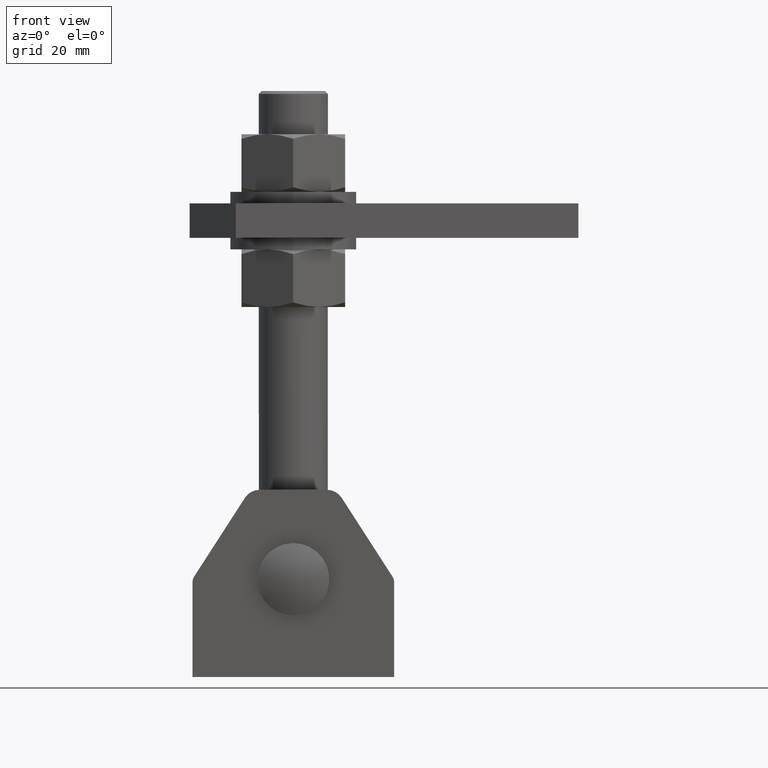
[diagram: clean part render]
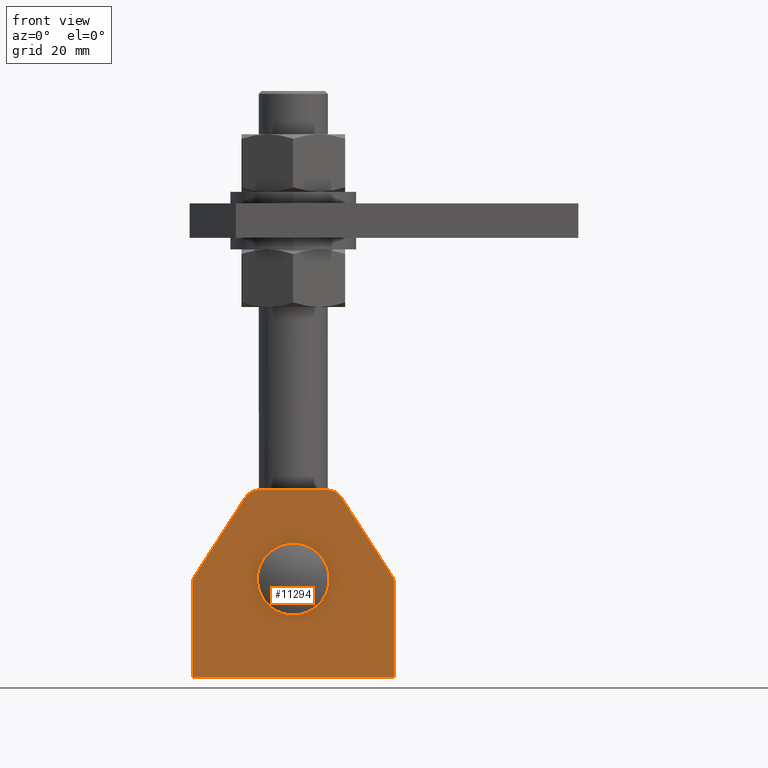
[diagram: same view with one face highlighted and labeled with its STEP entity id]
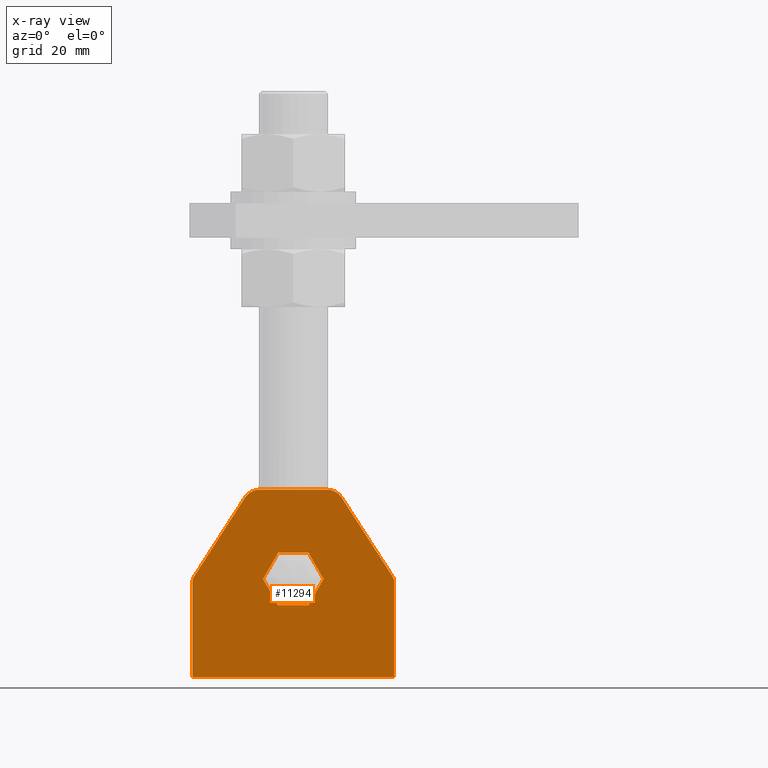
[diagram: x-ray of the same camera — body ghosted, the highlighted face saturated]
A machine part, front view. The second image highlights one B-rep face of the part: STEP entity #11294.
The next image is the same camera in x-ray: the body ghosted, the highlighted face saturated — about 0% of this face is hidden behind the body in this view.
In plain terms, the highlighted planar face has unit normal (0, -1, 0).
Its self-contained STEP definition (entity closure, byte-faithful):
#87 = EDGE_CURVE ( 'NONE', #5780, #9611, #13219, .T. ) ;
#452 = CARTESIAN_POINT ( 'NONE',  ( -10.50777489925119212, -4.000000000000000000, 16.70378967317035546 ) ) ;
#571 = VECTOR ( 'NONE', #2969, 999.9999999999998863 ) ;
#680 = CARTESIAN_POINT ( 'NONE',  ( -32.00000000000000000, -4.000000000000000000, 15.82002964946134149 ) ) ;
#737 = CARTESIAN_POINT ( 'NONE',  ( -5.253887449625594286, -4.000000000000000000, 7.603789673170350483 ) ) ;
#765 = ORIENTED_EDGE ( 'NONE', *, *, #13840, .F. ) ;
#812 = CIRCLE ( 'NONE', #5784, 2.999999999999999112 ) ;
#893 = ORIENTED_EDGE ( 'NONE', *, *, #4910, .T. ) ;
#963 = FACE_BOUND ( 'NONE', #5622, .T. ) ;
#989 = EDGE_CURVE ( 'NONE', #8870, #7062, #12095, .T. ) ;
#995 = DIRECTION ( 'NONE',  ( 0.000000000000000000, -1.000000000000000000, 0.000000000000000000 ) ) ;
#1226 = EDGE_CURVE ( 'NONE', #9615, #1517, #9370, .T. ) ;
#1381 = VECTOR ( 'NONE', #8230, 1000.000000000000000 ) ;
#1517 = VERTEX_POINT ( 'NONE', #8834 ) ;
#1532 = VECTOR ( 'NONE', #3443, 1000.000000000000000 ) ;
#1593 = CARTESIAN_POINT ( 'NONE',  ( -5.253887449625594286, -4.000000000000000000, 25.80378967317035332 ) ) ;
#1676 = CARTESIAN_POINT ( 'NONE',  ( -15.00000000000000000, -4.000000000000000000, 47.70378967317034835 ) ) ;
#1871 = DIRECTION ( 'NONE',  ( -0.5000000000000002220, 0.000000000000000000, -0.8660254037844384856 ) ) ;
#1879 = ORIENTED_EDGE ( 'NONE', *, *, #9133, .T. ) ;
#2157 = CARTESIAN_POINT ( 'NONE',  ( 10.50777489925119035, -4.000000000000000000, 16.70378967317035190 ) ) ;
#2577 = EDGE_CURVE ( 'NONE', #9615, #14154, #11373, .T. ) ;
#2613 = DIRECTION ( 'NONE',  ( 0.000000000000000000, 0.000000000000000000, -1.000000000000000000 ) ) ;
#2969 = DIRECTION ( 'NONE',  ( 0.5421268698220932380, -0.000000000000000000, -0.8402966482242442137 ) ) ;
#2996 = DIRECTION ( 'NONE',  ( 1.000000000000000000, -0.000000000000000000, -0.000000000000000000 ) ) ;
#3008 = VERTEX_POINT ( 'NONE', #10111 ) ;
#3027 = VERTEX_POINT ( 'NONE', #4119 ) ;
#3443 = DIRECTION ( 'NONE',  ( -1.000000000000000000, 0.000000000000000000, 0.000000000000000000 ) ) ;
#3635 = EDGE_CURVE ( 'NONE', #13129, #3027, #812, .T. ) ;
#3675 = DIRECTION ( 'NONE',  ( 1.000000000000000000, 0.000000000000000000, 0.000000000000000000 ) ) ;
#3731 = EDGE_CURVE ( 'NONE', #14045, #3008, #7346, .T. ) ;
#3818 = DIRECTION ( 'NONE',  ( 0.000000000000000000, -1.000000000000000000, 0.000000000000000000 ) ) ;
#3879 = CARTESIAN_POINT ( 'NONE',  ( 32.00000000000000000, -4.000000000000000000, 15.82002964946133439 ) ) ;
#3920 = CARTESIAN_POINT ( 'NONE',  ( 10.50777489925119035, -4.000000000000000000, 16.70378967317035190 ) ) ;
#4119 = CARTESIAN_POINT ( 'NONE',  ( 34.52088994467273153, -4.000000000000000000, 17.44641025892761732 ) ) ;
#4168 = CARTESIAN_POINT ( 'NONE',  ( 16.77241211681768718, -4.000000000000000000, 44.95655089210293198 ) ) ;
#4190 = DIRECTION ( 'NONE',  ( 0.000000000000000000, -1.000000000000000000, 0.000000000000000000 ) ) ;
#4497 = CARTESIAN_POINT ( 'NONE',  ( 11.73063222747223655, -4.000000000000000000, 41.70378967317035546 ) ) ;
#4615 = CARTESIAN_POINT ( 'NONE',  ( -34.52088994467273864, -4.000000000000000000, 17.44641025892761377 ) ) ;
#4740 = LINE ( 'NONE', #14811, #11806 ) ;
#4910 = EDGE_CURVE ( 'NONE', #7062, #14045, #6413, .T. ) ;
#4972 = PLANE ( 'NONE',  #12083 ) ;
#5038 = CARTESIAN_POINT ( 'NONE',  ( -35.00000000000000000, -4.000000000000000000, 16.70378967317035190 ) ) ;
#5061 = AXIS2_PLACEMENT_3D ( 'NONE', #680, #4190, #5359 ) ;
#5086 = CARTESIAN_POINT ( 'NONE',  ( 35.00000000000000000, -4.000000000000000000, 15.82002964946133439 ) ) ;
#5359 = DIRECTION ( 'NONE',  ( 0.000000000000000000, 0.000000000000000000, -1.000000000000000000 ) ) ;
#5562 = CARTESIAN_POINT ( 'NONE',  ( -11.73063222747223655, -4.000000000000000000, 47.70378967317034835 ) ) ;
#5581 = VERTEX_POINT ( 'NONE', #4168 ) ;
#5610 = CARTESIAN_POINT ( 'NONE',  ( 35.00000000000000000, -4.000000000000000000, -17.29621032682964810 ) ) ;
#5622 = EDGE_LOOP ( 'NONE', ( #12065, #10750, #13523, #11040, #9231, #893 ) ) ;
#5745 = CIRCLE ( 'NONE', #13356, 5.999999999999998224 ) ;
#5756 = CARTESIAN_POINT ( 'NONE',  ( 35.00000000000000000, -4.000000000000000000, -17.29621032682964810 ) ) ;
#5780 = VERTEX_POINT ( 'NONE', #4615 ) ;
#5784 = AXIS2_PLACEMENT_3D ( 'NONE', #3879, #9602, #9696 ) ;
#5861 = VECTOR ( 'NONE', #13056, 1000.000000000000000 ) ;
#6413 = LINE ( 'NONE', #452, #9152 ) ;
#6772 = VECTOR ( 'NONE', #7543, 999.9999999999998863 ) ;
#6797 = DIRECTION ( 'NONE',  ( 0.000000000000000000, 0.000000000000000000, -1.000000000000000000 ) ) ;
#6960 = FACE_OUTER_BOUND ( 'NONE', #14878, .T. ) ;
#7021 = CARTESIAN_POINT ( 'NONE',  ( -5.253887449625594286, -4.000000000000000000, 25.80378967317035332 ) ) ;
#7062 = VERTEX_POINT ( 'NONE', #12543 ) ;
#7271 = DIRECTION ( 'NONE',  ( 0.000000000000000000, -1.000000000000000000, 0.000000000000000000 ) ) ;
#7318 = AXIS2_PLACEMENT_3D ( 'NONE', #9542, #7271, #2613 ) ;
#7346 = LINE ( 'NONE', #1593, #10448 ) ;
#7439 = DIRECTION ( 'NONE',  ( 0.5000000000000003331, 0.000000000000000000, 0.8660254037844383745 ) ) ;
#7543 = DIRECTION ( 'NONE',  ( 0.5421268698220932380, -0.000000000000000000, 0.8402966482242442137 ) ) ;
#7727 = LINE ( 'NONE', #14940, #1532 ) ;
#7912 = EDGE_CURVE ( 'NONE', #13129, #14407, #14844, .T. ) ;
#8230 = DIRECTION ( 'NONE',  ( -0.000000000000000000, -0.000000000000000000, -1.000000000000000000 ) ) ;
#8575 = LINE ( 'NONE', #12022, #11500 ) ;
#8834 = CARTESIAN_POINT ( 'NONE',  ( -16.77241211681770139, -4.000000000000000000, 44.95655089210291067 ) ) ;
#8870 = VERTEX_POINT ( 'NONE', #13888 ) ;
#8962 = LINE ( 'NONE', #3920, #13308 ) ;
#9133 = EDGE_CURVE ( 'NONE', #5581, #14154, #5745, .T. ) ;
#9152 = VECTOR ( 'NONE', #7439, 1000.000000000000227 ) ;
#9231 = ORIENTED_EDGE ( 'NONE', *, *, #989, .T. ) ;
#9370 = CIRCLE ( 'NONE', #7318, 5.999999999999998224 ) ;
#9542 = CARTESIAN_POINT ( 'NONE',  ( -11.73063222747223655, -4.000000000000000000, 41.70378967317034835 ) ) ;
#9602 = DIRECTION ( 'NONE',  ( 0.000000000000000000, -1.000000000000000000, 0.000000000000000000 ) ) ;
#9611 = VERTEX_POINT ( 'NONE', #14887 ) ;
#9615 = VERTEX_POINT ( 'NONE', #5562 ) ;
#9696 = DIRECTION ( 'NONE',  ( 0.000000000000000000, 0.000000000000000000, -1.000000000000000000 ) ) ;
#9780 = EDGE_CURVE ( 'NONE', #11064, #8870, #7727, .T. ) ;
#9920 = CARTESIAN_POINT ( 'NONE',  ( 15.00000000000000000, -4.000000000000000000, 47.70378967317034835 ) ) ;
#10085 = ORIENTED_EDGE ( 'NONE', *, *, #2577, .F. ) ;
#10111 = CARTESIAN_POINT ( 'NONE',  ( 5.253887449625596950, -4.000000000000000000, 25.80378967317035332 ) ) ;
#10206 = ORIENTED_EDGE ( 'NONE', *, *, #7912, .F. ) ;
#10448 = VECTOR ( 'NONE', #3675, 1000.000000000000000 ) ;
#10750 = ORIENTED_EDGE ( 'NONE', *, *, #12124, .T. ) ;
#10765 = LINE ( 'NONE', #5038, #5861 ) ;
#10886 = CARTESIAN_POINT ( 'NONE',  ( -35.00000000000000000, -4.000000000000000000, -17.29621032682964810 ) ) ;
#10905 = ORIENTED_EDGE ( 'NONE', *, *, #13501, .F. ) ;
#11040 = ORIENTED_EDGE ( 'NONE', *, *, #9780, .T. ) ;
#11064 = VERTEX_POINT ( 'NONE', #12590 ) ;
#11294 = ADVANCED_FACE ( 'NONE', ( #6960, #963 ), #4972, .T. ) ;
#11373 = LINE ( 'NONE', #9920, #14067 ) ;
#11382 = EDGE_CURVE ( 'NONE', #14431, #11064, #8962, .T. ) ;
#11500 = VECTOR ( 'NONE', #12225, 1000.000000000000000 ) ;
#11506 = DIRECTION ( 'NONE',  ( -1.000000000000000000, -0.000000000000000000, -0.000000000000000000 ) ) ;
#11806 = VECTOR ( 'NONE', #11506, 1000.000000000000000 ) ;
#11953 = EDGE_CURVE ( 'NONE', #11979, #9611, #10765, .T. ) ;
#11979 = VERTEX_POINT ( 'NONE', #10886 ) ;
#11998 = ORIENTED_EDGE ( 'NONE', *, *, #12451, .F. ) ;
#12022 = CARTESIAN_POINT ( 'NONE',  ( 5.253887449625596950, -4.000000000000000000, 25.80378967317035332 ) ) ;
#12065 = ORIENTED_EDGE ( 'NONE', *, *, #3731, .T. ) ;
#12079 = DIRECTION ( 'NONE',  ( -0.4999999999999999445, 0.000000000000000000, 0.8660254037844385966 ) ) ;
#12083 = AXIS2_PLACEMENT_3D ( 'NONE', #13098, #3818, #12989 ) ;
#12095 = LINE ( 'NONE', #737, #12833 ) ;
#12124 = EDGE_CURVE ( 'NONE', #3008, #14431, #8575, .T. ) ;
#12225 = DIRECTION ( 'NONE',  ( 0.4999999999999998890, 0.000000000000000000, -0.8660254037844387076 ) ) ;
#12323 = CARTESIAN_POINT ( 'NONE',  ( 35.00000000000000000, -4.000000000000000000, 16.70378967317035190 ) ) ;
#12451 = EDGE_CURVE ( 'NONE', #5780, #1517, #14563, .T. ) ;
#12543 = CARTESIAN_POINT ( 'NONE',  ( -10.50777489925119212, -4.000000000000000000, 16.70378967317035546 ) ) ;
#12590 = CARTESIAN_POINT ( 'NONE',  ( 5.253887449625591621, -4.000000000000000000, 7.603789673170350483 ) ) ;
#12833 = VECTOR ( 'NONE', #12079, 1000.000000000000114 ) ;
#12958 = ORIENTED_EDGE ( 'NONE', *, *, #87, .T. ) ;
#12989 = DIRECTION ( 'NONE',  ( 0.000000000000000000, -0.000000000000000000, -1.000000000000000000 ) ) ;
#13024 = ORIENTED_EDGE ( 'NONE', *, *, #3635, .T. ) ;
#13056 = DIRECTION ( 'NONE',  ( -0.000000000000000000, -0.000000000000000000, 1.000000000000000000 ) ) ;
#13098 = CARTESIAN_POINT ( 'NONE',  ( 0.000000000000000000, -4.000000000000000000, 0.000000000000000000 ) ) ;
#13129 = VERTEX_POINT ( 'NONE', #5086 ) ;
#13219 = CIRCLE ( 'NONE', #5061, 2.999999999999999112 ) ;
#13308 = VECTOR ( 'NONE', #1871, 1000.000000000000227 ) ;
#13356 = AXIS2_PLACEMENT_3D ( 'NONE', #4497, #995, #6797 ) ;
#13501 = EDGE_CURVE ( 'NONE', #5581, #3027, #14936, .T. ) ;
#13523 = ORIENTED_EDGE ( 'NONE', *, *, #11382, .T. ) ;
#13585 = ORIENTED_EDGE ( 'NONE', *, *, #1226, .T. ) ;
#13840 = EDGE_CURVE ( 'NONE', #14407, #11979, #4740, .T. ) ;
#13888 = CARTESIAN_POINT ( 'NONE',  ( -5.253887449625594286, -4.000000000000000000, 7.603789673170350483 ) ) ;
#14007 = CARTESIAN_POINT ( 'NONE',  ( 11.73063222747223655, -4.000000000000000000, 47.70378967317034835 ) ) ;
#14045 = VERTEX_POINT ( 'NONE', #7021 ) ;
#14067 = VECTOR ( 'NONE', #2996, 1000.000000000000000 ) ;
#14154 = VERTEX_POINT ( 'NONE', #14007 ) ;
#14407 = VERTEX_POINT ( 'NONE', #5610 ) ;
#14431 = VERTEX_POINT ( 'NONE', #2157 ) ;
#14563 = LINE ( 'NONE', #1676, #6772 ) ;
#14672 = ORIENTED_EDGE ( 'NONE', *, *, #11953, .F. ) ;
#14811 = CARTESIAN_POINT ( 'NONE',  ( -35.00000000000000000, -4.000000000000000000, -17.29621032682964810 ) ) ;
#14844 = LINE ( 'NONE', #5756, #1381 ) ;
#14878 = EDGE_LOOP ( 'NONE', ( #11998, #12958, #14672, #765, #10206, #13024, #10905, #1879, #10085, #13585 ) ) ;
#14887 = CARTESIAN_POINT ( 'NONE',  ( -35.00000000000000000, -4.000000000000000000, 15.82002964946134149 ) ) ;
#14936 = LINE ( 'NONE', #12323, #571 ) ;
#14940 = CARTESIAN_POINT ( 'NONE',  ( 5.253887449625591621, -4.000000000000000000, 7.603789673170350483 ) ) ;